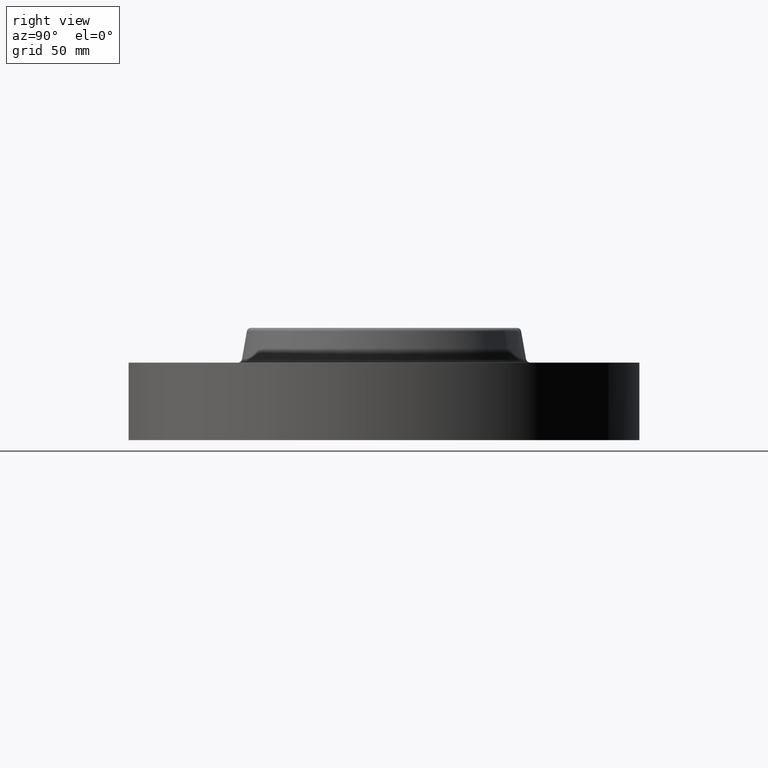
[diagram: clean part render]
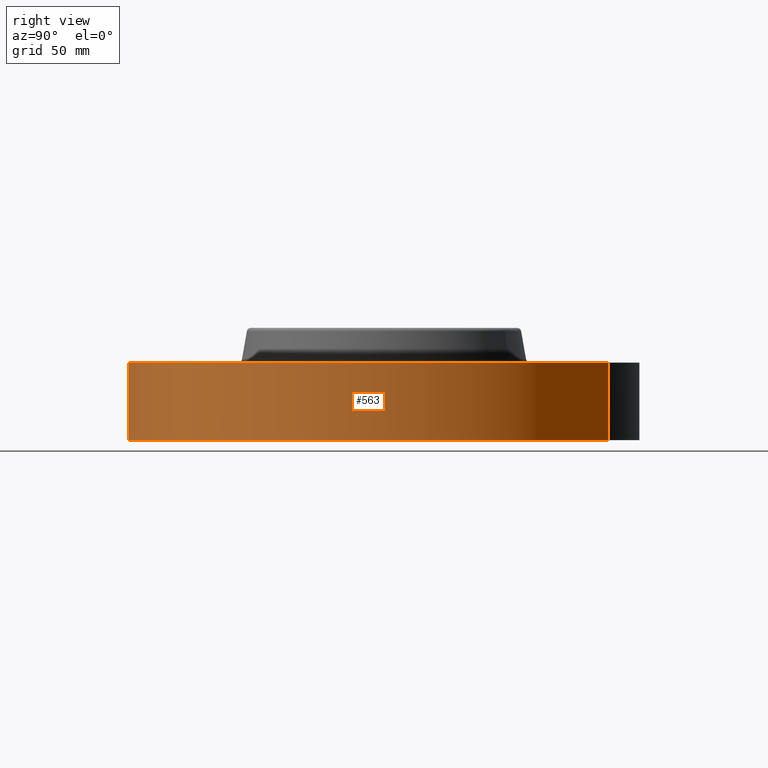
[diagram: same view with one face highlighted and labeled with its STEP entity id]
A machine part, right view. The second image highlights one B-rep face of the part: STEP entity #563.
In plain terms, the highlighted cylindrical surface (partial cylindrical patch) has radius 104.775 mm, axis along (0, 0, -1).
Its self-contained STEP definition (entity closure, byte-faithful):
#284=AXIS2_PLACEMENT_3D('Circle Axis2P3D',#282,#283,$) ;
#550=AXIS2_PLACEMENT_3D('Cylinder Axis2P3D',#547,#548,#549) ;
#554=AXIS2_PLACEMENT_3D('Circle Axis2P3D',#552,#553,$) ;
#277=CARTESIAN_POINT('Vertex',(-1.97763034678,-3.62002806781,0.)) ;
#279=CARTESIAN_POINT('Vertex',(1.97763034678,3.62002806783,0.)) ;
#282=CARTESIAN_POINT('Axis2P3D Location',(-1.1189649382E-015,7.06626358476E-012,0.)) ;
#514=CARTESIAN_POINT('Line Origine',(-1.97763034675,-3.62002806781,0.625000000007)) ;
#518=CARTESIAN_POINT('Vertex',(-1.97763034675,-3.62002806781,1.25000000001)) ;
#525=CARTESIAN_POINT('Vertex',(1.97763034675,3.62002806781,1.25000000001)) ;
#528=CARTESIAN_POINT('Line Origine',(1.97763034675,3.62002806781,0.625000000007)) ;
#547=CARTESIAN_POINT('Axis2P3D Location',(0.,0.,0.905000000004)) ;
#552=CARTESIAN_POINT('Axis2P3D Location',(0.,0.,1.25000000001)) ;
#283=DIRECTION('Axis2P3D Direction',(0.,0.,-0.0393700787402)) ;
#515=DIRECTION('Vector Direction',(0.,0.,-0.0393700787402)) ;
#529=DIRECTION('Vector Direction',(0.,0.,-0.0393700787402)) ;
#548=DIRECTION('Axis2P3D Direction',(0.,0.,-0.0393700787402)) ;
#549=DIRECTION('Axis2P3D XDirection',(0.0188750212049,0.0345504945626,0.)) ;
#553=DIRECTION('Axis2P3D Direction',(0.,0.,-0.0393700787402)) ;
#516=VECTOR('Line Direction',#515,0.0393700787402) ;
#530=VECTOR('Line Direction',#529,0.0393700787402) ;
#558=ORIENTED_EDGE('',*,*,#286,.F.) ;
#559=ORIENTED_EDGE('',*,*,#532,.T.) ;
#560=ORIENTED_EDGE('',*,*,#556,.T.) ;
#561=ORIENTED_EDGE('',*,*,#520,.F.) ;
#563=ADVANCED_FACE('PartBody',(#562),#551,.T.) ;
#285=CIRCLE('generated circle',#284,4.12500000004) ;
#555=CIRCLE('generated circle',#554,4.12500000002) ;
#551=CYLINDRICAL_SURFACE('generated cylinder',#550,4.12500000002) ;
#286=EDGE_CURVE('',#280,#278,#285,.T.) ;
#520=EDGE_CURVE('',#278,#519,#517,.F.) ;
#532=EDGE_CURVE('',#280,#526,#531,.F.) ;
#556=EDGE_CURVE('',#526,#519,#555,.T.) ;
#557=EDGE_LOOP('',(#558,#559,#560,#561)) ;
#562=FACE_OUTER_BOUND('',#557,.T.) ;
#517=LINE('Line',#514,#516) ;
#531=LINE('Line',#528,#530) ;
#278=VERTEX_POINT('',#277) ;
#280=VERTEX_POINT('',#279) ;
#519=VERTEX_POINT('',#518) ;
#526=VERTEX_POINT('',#525) ;